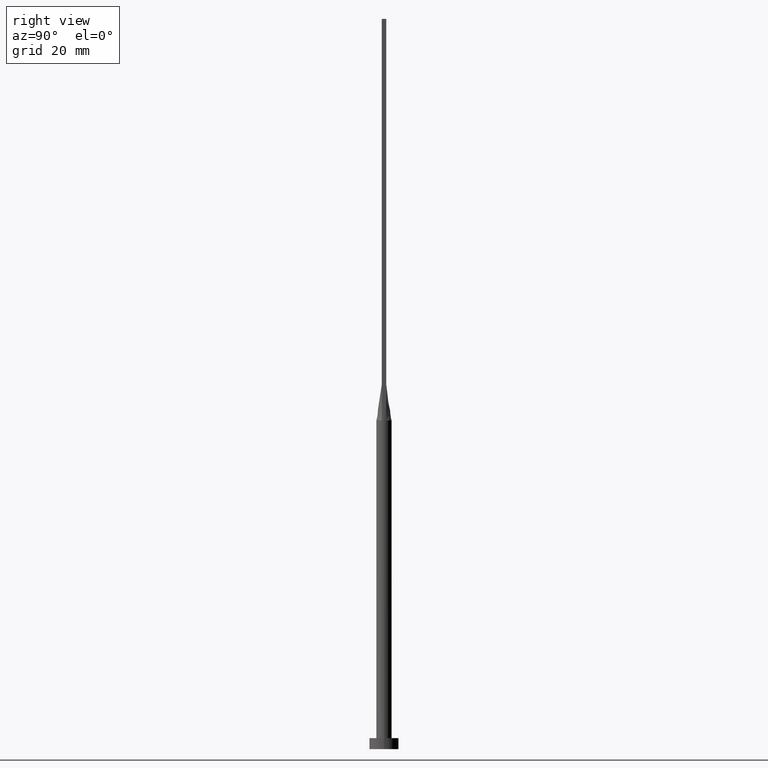
[diagram: clean part render]
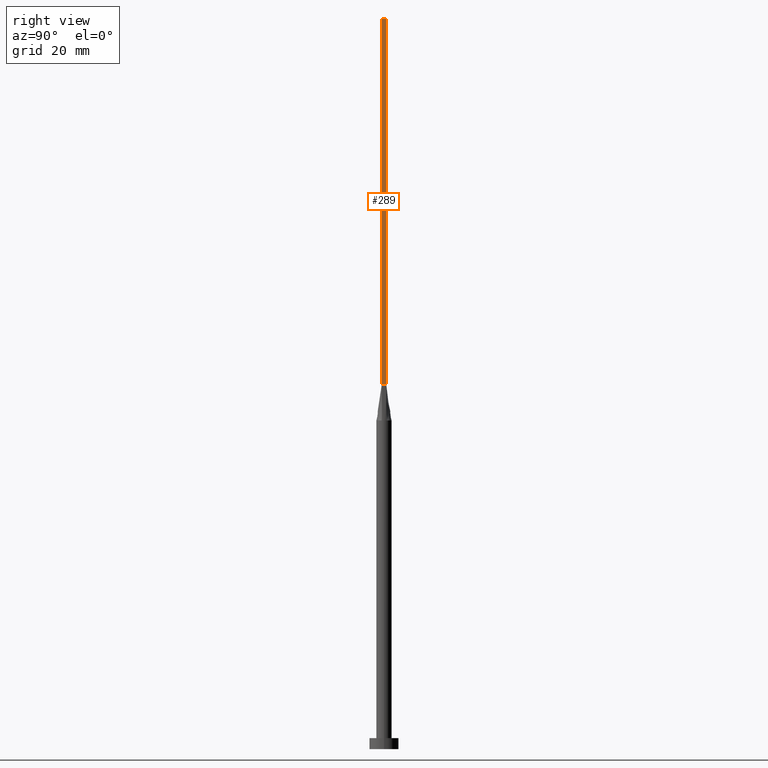
[diagram: same view with one face highlighted and labeled with its STEP entity id]
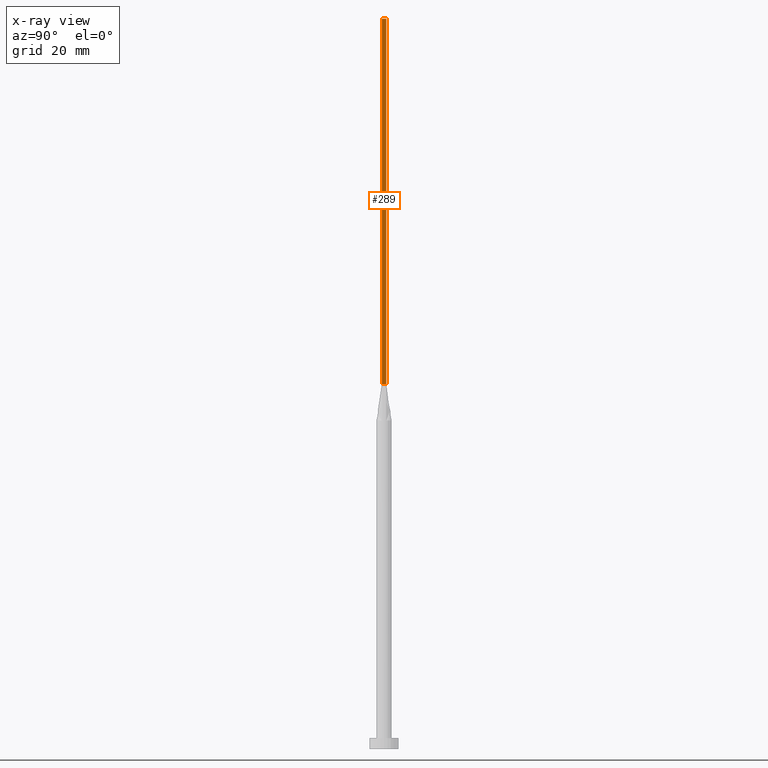
[diagram: x-ray of the same camera — body ghosted, the highlighted face saturated]
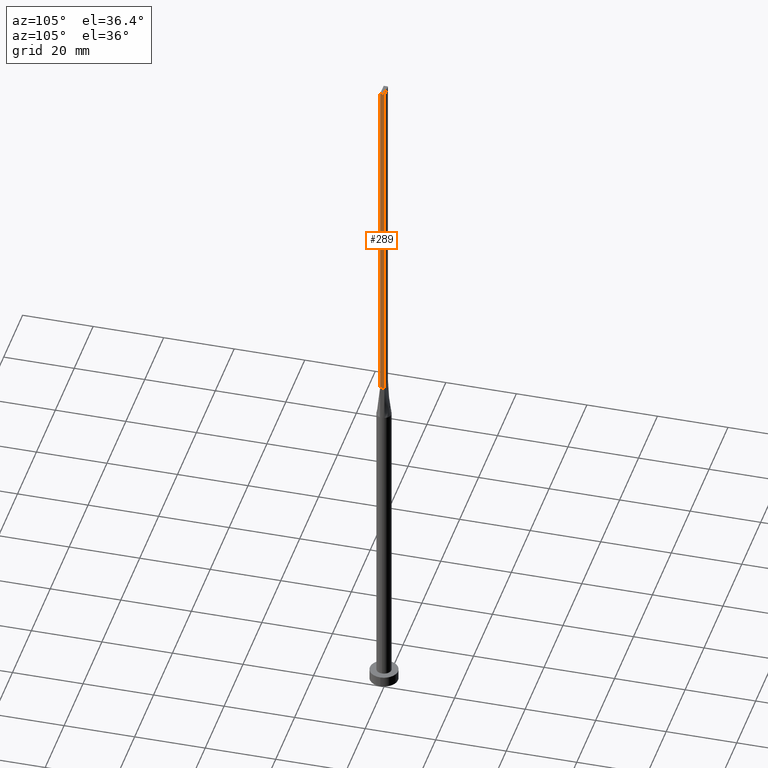
[diagram: same view with one face highlighted and labeled with its STEP entity id]
A machine part, right view. The second image highlights one B-rep face of the part: STEP entity #289.
The next image is the same camera in x-ray: the body ghosted, the highlighted face saturated — about 0% of this face is hidden behind the body in this view.
A second angle (auxiliary view) of the same face is appended — the face is thin or edge-on in the first view.
In plain terms, the highlighted planar face has unit normal (-1, 0, 0).
Its self-contained STEP definition (entity closure, byte-faithful):
#7 = CARTESIAN_POINT ( 'NONE',  ( 1.899999999999999689, 0.6000000000000001998, 99.99999999999998579 ) ) ;
#12 = VERTEX_POINT ( 'NONE', #562 ) ;
#14 = CARTESIAN_POINT ( 'NONE',  ( 1.899999999999999689, 0.6000000000000001998, 99.99999999999998579 ) ) ;
#23 = VECTOR ( 'NONE', #453, 1000.000000000000000 ) ;
#24 = VERTEX_POINT ( 'NONE', #7 ) ;
#58 = CARTESIAN_POINT ( 'NONE',  ( 1.899999999999999689, 0.6000000000000001998, 200.0000000000000000 ) ) ;
#61 = PLANE ( 'NONE',  #398 ) ;
#62 = EDGE_CURVE ( 'NONE', #190, #12, #91, .T. ) ;
#79 = EDGE_CURVE ( 'NONE', #190, #293, #503, .T. ) ;
#91 = LINE ( 'NONE', #406, #256 ) ;
#132 = VECTOR ( 'NONE', #266, 1000.000000000000000 ) ;
#138 = DIRECTION ( 'NONE',  ( -1.807003620809174139E-16, 1.000000000000000000, -0.000000000000000000 ) ) ;
#167 = ORIENTED_EDGE ( 'NONE', *, *, #245, .T. ) ;
#175 = LINE ( 'NONE', #499, #132 ) ;
#188 = CARTESIAN_POINT ( 'NONE',  ( 1.899999999999999023, -0.5999999999999997558, 200.0000000000000000 ) ) ;
#190 = VERTEX_POINT ( 'NONE', #188 ) ;
#245 = EDGE_CURVE ( 'NONE', #12, #24, #378, .T. ) ;
#256 = VECTOR ( 'NONE', #542, 1000.000000000000000 ) ;
#266 = DIRECTION ( 'NONE',  ( -0.000000000000000000, -0.000000000000000000, -1.000000000000000000 ) ) ;
#271 = CARTESIAN_POINT ( 'NONE',  ( 1.899999999999999023, -0.5999999999999997558, 200.0000000000000000 ) ) ;
#281 = CARTESIAN_POINT ( 'NONE',  ( 1.899999999999999023, -0.5999999999999997558, 200.0000000000000000 ) ) ;
#283 = FACE_OUTER_BOUND ( 'NONE', #386, .T. ) ;
#289 = ADVANCED_FACE ( 'NONE', ( #283 ), #61, .F. ) ;
#293 = VERTEX_POINT ( 'NONE', #58 ) ;
#330 = ORIENTED_EDGE ( 'NONE', *, *, #79, .F. ) ;
#362 = VECTOR ( 'NONE', #138, 1000.000000000000000 ) ;
#378 = LINE ( 'NONE', #14, #362 ) ;
#386 = EDGE_LOOP ( 'NONE', ( #167, #558, #330, #498 ) ) ;
#398 = AXIS2_PLACEMENT_3D ( 'NONE', #281, #474, #465 ) ;
#406 = CARTESIAN_POINT ( 'NONE',  ( 1.899999999999999023, -0.5999999999999997558, 200.0000000000000000 ) ) ;
#453 = DIRECTION ( 'NONE',  ( 5.421010862427522170E-16, 1.000000000000000000, 0.000000000000000000 ) ) ;
#465 = DIRECTION ( 'NONE',  ( -5.421010862427522170E-16, -1.000000000000000000, 0.000000000000000000 ) ) ;
#474 = DIRECTION ( 'NONE',  ( -1.000000000000000000, 5.421010862427522170E-16, 0.000000000000000000 ) ) ;
#483 = EDGE_CURVE ( 'NONE', #293, #24, #175, .T. ) ;
#498 = ORIENTED_EDGE ( 'NONE', *, *, #62, .T. ) ;
#499 = CARTESIAN_POINT ( 'NONE',  ( 1.899999999999999689, 0.6000000000000001998, 200.0000000000000000 ) ) ;
#503 = LINE ( 'NONE', #271, #23 ) ;
#542 = DIRECTION ( 'NONE',  ( -0.000000000000000000, -0.000000000000000000, -1.000000000000000000 ) ) ;
#558 = ORIENTED_EDGE ( 'NONE', *, *, #483, .F. ) ;
#562 = CARTESIAN_POINT ( 'NONE',  ( 1.899999999999999023, -0.5999999999999997558, 99.99999999999998579 ) ) ;